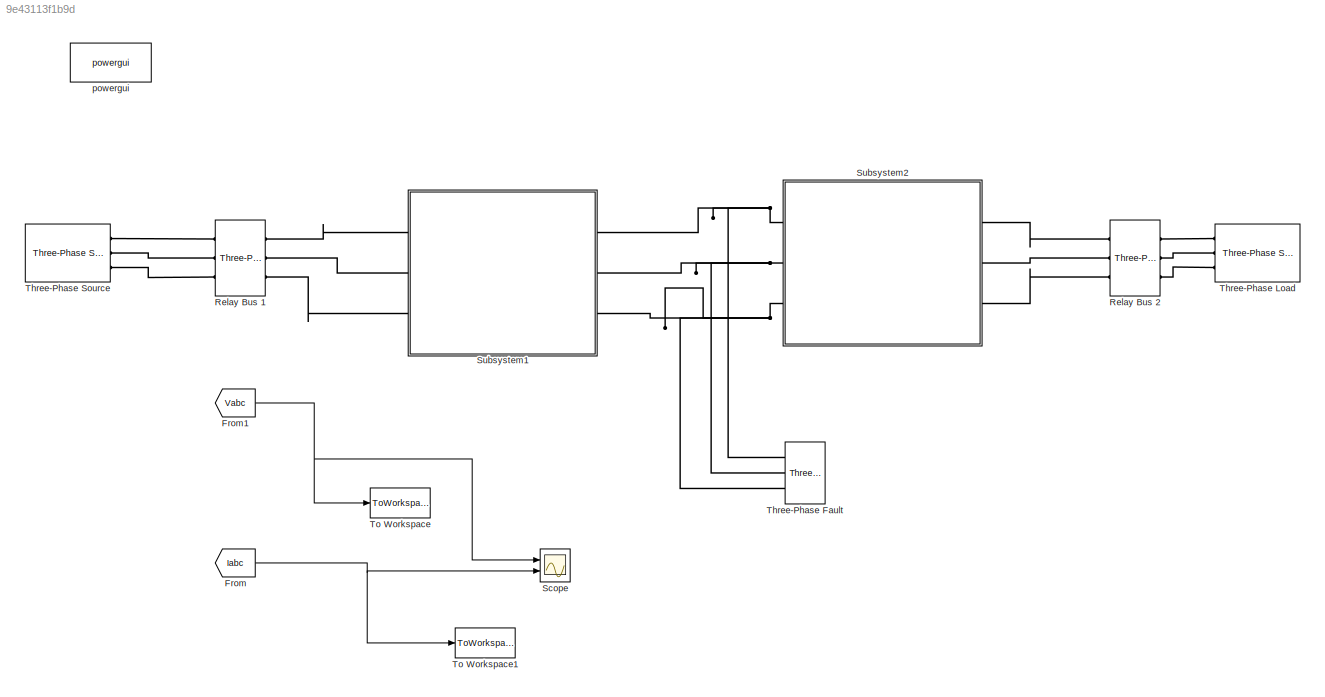
MODEL slx_9e43113f1b9d
KIND model
CONFIG AbsTol = auto
CONFIG EnableMultiTasking = off
CONFIG FixedStep = auto
CONFIG MaxStep = auto
CONFIG MinStep = auto
CONFIG RelTol = 1e-3
CONFIG SampleTimeConstraint = Unconstrained
CONFIG Solver = VariableStepAuto
CONFIG SolverName = VariableStepAuto
CONFIG StartTime = 0.0
CONFIG StopTime = 0.5
BLOCK [From] From
  GotoTag = Iabc
  TagVisibility = global
BLOCK [From] From1
  GotoTag = Vabc
  TagVisibility = global
BLOCK [Reference] Relay Bus 1   REF=powerlib/Measurements/Three-Phase
V-I Measurement
  Ports = [0, 0, 0, 0, 0, 3, 3]
  SourceBlock = powerlib/Measurements/Three-Phase\nV-I Measurement
  SourceProductBaseCode = PS
  SourceProductName = Simscape Electrical
  SourceType = Three-Phase VI Measurement
BLOCK [Reference] Relay Bus 2   REF=powerlib/Measurements/Three-Phase
V-I Measurement
  Ports = [0, 0, 0, 0, 0, 3, 3]
  SourceBlock = powerlib/Measurements/Three-Phase\nV-I Measurement
  SourceProductBaseCode = PS
  SourceProductName = Simscape Electrical
  SourceType = Three-Phase VI Measurement
BLOCK [Scope] Scope 
  Floating = off
  NumInputPorts = 2
  Ports = [2]
  ScopeSpecificationString = Simulink.scopes.TimeScopeBlockCfg('CurrentConfiguration', extmgr.ConfigurationSet(extmgr.Configuration('Core','General UI',true),extmgr.Configuration('Core','Source UI',true),extmgr.Configuration('Sources','WiredSimulink',true),extmgr.Configuration('Visuals','Time Domain',true,'SerializedDisplays',{struct('MinYLimReal','-0.1236','MaxYLimReal','0.12482','YLabelReal','','MinYLimMag','0.00000','MaxYL...<+2104ch>
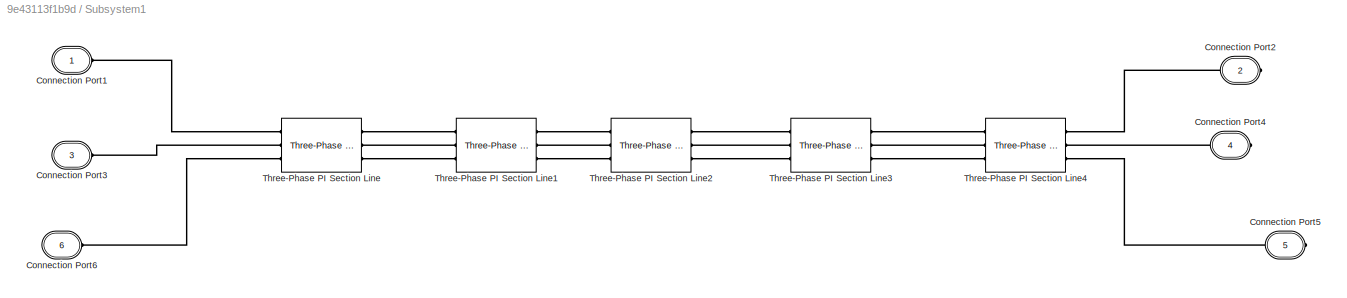
BLOCK [SubSystem] Subsystem1 
  Ports = [0, 0, 0, 0, 0, 3, 3]
  RequestExecContextInheritance = off
BLOCK [PMIOPort] Subsystem1 /Connection Port1 
  Side = Left
  Tag = PMCPort
BLOCK [PMIOPort] Subsystem1 /Connection Port2 
  Port = 2
  Side = Right
  Tag = PMCPort
BLOCK [PMIOPort] Subsystem1 /Connection Port3 
  Port = 3
  Side = Left
  Tag = PMCPort
BLOCK [PMIOPort] Subsystem1 /Connection Port4 
  Port = 4
  Side = Right
  Tag = PMCPort
BLOCK [PMIOPort] Subsystem1 /Connection Port5 
  Port = 5
  Side = Right
  Tag = PMCPort
BLOCK [PMIOPort] Subsystem1 /Connection Port6 
  Port = 6
  Side = Left
  Tag = PMCPort
BLOCK [Reference] Subsystem1 /Three-Phase PI Section Line  REF=powerlib/Elements/Three-Phase
PI Section Line
  AttributesFormatString = \n
  Ports = [0, 0, 0, 0, 0, 3, 3]
  SourceBlock = powerlib/Elements/Three-Phase\nPI Section Line
  SourceProductBaseCode = PS
  SourceProductName = Simscape Electrical
  SourceType = Three-Phase PI Section Line
BLOCK [Reference] Subsystem1 /Three-Phase PI Section Line1  REF=powerlib/Elements/Three-Phase
PI Section Line
  AttributesFormatString = \n
  Ports = [0, 0, 0, 0, 0, 3, 3]
  SourceBlock = powerlib/Elements/Three-Phase\nPI Section Line
  SourceProductBaseCode = PS
  SourceProductName = Simscape Electrical
  SourceType = Three-Phase PI Section Line
BLOCK [Reference] Subsystem1 /Three-Phase PI Section Line2  REF=powerlib/Elements/Three-Phase
PI Section Line
  AttributesFormatString = \n
  Ports = [0, 0, 0, 0, 0, 3, 3]
  SourceBlock = powerlib/Elements/Three-Phase\nPI Section Line
  SourceProductBaseCode = PS
  SourceProductName = Simscape Electrical
  SourceType = Three-Phase PI Section Line
BLOCK [Reference] Subsystem1 /Three-Phase PI Section Line3  REF=powerlib/Elements/Three-Phase
PI Section Line
  AttributesFormatString = \n
  Ports = [0, 0, 0, 0, 0, 3, 3]
  SourceBlock = powerlib/Elements/Three-Phase\nPI Section Line
  SourceProductBaseCode = PS
  SourceProductName = Simscape Electrical
  SourceType = Three-Phase PI Section Line
BLOCK [Reference] Subsystem1 /Three-Phase PI Section Line4  REF=powerlib/Elements/Three-Phase
PI Section Line
  AttributesFormatString = \n
  Ports = [0, 0, 0, 0, 0, 3, 3]
  SourceBlock = powerlib/Elements/Three-Phase\nPI Section Line
  SourceProductBaseCode = PS
  SourceProductName = Simscape Electrical
  SourceType = Three-Phase PI Section Line
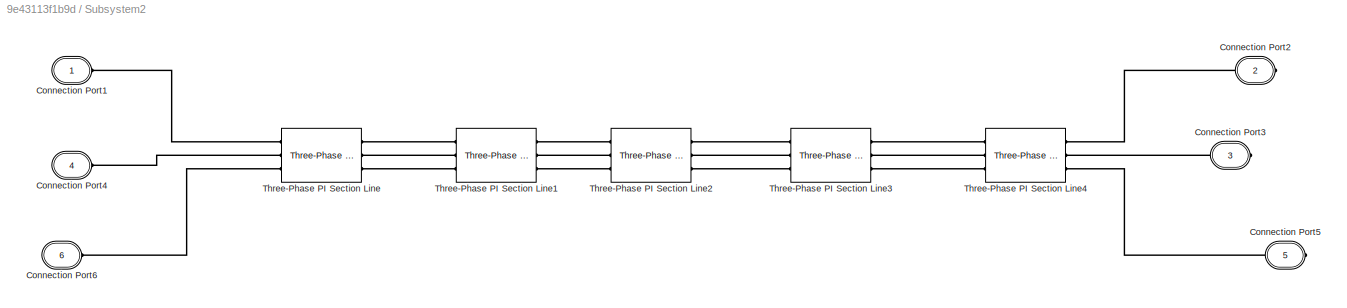
BLOCK [SubSystem] Subsystem2 
  Ports = [0, 0, 0, 0, 0, 3, 3]
  RequestExecContextInheritance = off
BLOCK [PMIOPort] Subsystem2 /Connection Port1 
  Side = Left
  Tag = PMCPort
BLOCK [PMIOPort] Subsystem2 /Connection Port2 
  Port = 2
  Side = Right
  Tag = PMCPort
BLOCK [PMIOPort] Subsystem2 /Connection Port3 
  Port = 3
  Side = Right
  Tag = PMCPort
BLOCK [PMIOPort] Subsystem2 /Connection Port4 
  Port = 4
  Side = Left
  Tag = PMCPort
BLOCK [PMIOPort] Subsystem2 /Connection Port5 
  Port = 5
  Side = Right
  Tag = PMCPort
BLOCK [PMIOPort] Subsystem2 /Connection Port6 
  Port = 6
  Side = Left
  Tag = PMCPort
BLOCK [Reference] Subsystem2 /Three-Phase PI Section Line  REF=powerlib/Elements/Three-Phase
PI Section Line
  AttributesFormatString = \n
  Ports = [0, 0, 0, 0, 0, 3, 3]
  SourceBlock = powerlib/Elements/Three-Phase\nPI Section Line
  SourceProductBaseCode = PS
  SourceProductName = Simscape Electrical
  SourceType = Three-Phase PI Section Line
BLOCK [Reference] Subsystem2 /Three-Phase PI Section Line1  REF=powerlib/Elements/Three-Phase
PI Section Line
  AttributesFormatString = \n
  Ports = [0, 0, 0, 0, 0, 3, 3]
  SourceBlock = powerlib/Elements/Three-Phase\nPI Section Line
  SourceProductBaseCode = PS
  SourceProductName = Simscape Electrical
  SourceType = Three-Phase PI Section Line
BLOCK [Reference] Subsystem2 /Three-Phase PI Section Line2  REF=powerlib/Elements/Three-Phase
PI Section Line
  AttributesFormatString = \n
  Ports = [0, 0, 0, 0, 0, 3, 3]
  SourceBlock = powerlib/Elements/Three-Phase\nPI Section Line
  SourceProductBaseCode = PS
  SourceProductName = Simscape Electrical
  SourceType = Three-Phase PI Section Line
BLOCK [Reference] Subsystem2 /Three-Phase PI Section Line3  REF=powerlib/Elements/Three-Phase
PI Section Line
  AttributesFormatString = \n
  Ports = [0, 0, 0, 0, 0, 3, 3]
  SourceBlock = powerlib/Elements/Three-Phase\nPI Section Line
  SourceProductBaseCode = PS
  SourceProductName = Simscape Electrical
  SourceType = Three-Phase PI Section Line
BLOCK [Reference] Subsystem2 /Three-Phase PI Section Line4  REF=powerlib/Elements/Three-Phase
PI Section Line
  AttributesFormatString = \n
  Ports = [0, 0, 0, 0, 0, 3, 3]
  SourceBlock = powerlib/Elements/Three-Phase\nPI Section Line
  SourceProductBaseCode = PS
  SourceProductName = Simscape Electrical
  SourceType = Three-Phase PI Section Line
BLOCK [Reference] Three-Phase Fault   REF=powerlib/Elements/Three-Phase Fault
  Ports = [0, 0, 0, 0, 0, 3]
  SourceBlock = powerlib/Elements/Three-Phase Fault
  SourceProductBaseCode = PS
  SourceProductName = Simscape Electrical
  SourceType = Three-Phase Fault
BLOCK [Reference] Three-Phase Load   REF=powerlib/Electrical
Sources/Three-Phase Source
  Ports = [0, 0, 0, 0, 0, 0, 3]
  SourceBlock = powerlib/Electrical\nSources/Three-Phase Source
  SourceProductBaseCode = PS
  SourceProductName = Simscape Electrical
  SourceType = Three-Phase Source
BLOCK [Reference] Three-Phase Source   REF=powerlib/Electrical
Sources/Three-Phase Source
  Ports = [0, 0, 0, 0, 0, 0, 3]
  SourceBlock = powerlib/Electrical\nSources/Three-Phase Source
  SourceProductBaseCode = PS
  SourceProductName = Simscape Electrical
  SourceType = Three-Phase Source
BLOCK [ToWorkspace] To Workspace 
  MaxDataPoints = inf
  Ports = [1]
  SaveFormat = Timeseries
  VariableName = Vabc
BLOCK [ToWorkspace] To Workspace1 
  MaxDataPoints = inf
  Ports = [1]
  SaveFormat = Timeseries
  VariableName = Iabc
BLOCK [Reference] powergui  REF=powerlib/powergui
  Ports = []
  Priority = 1
  SourceBlock = powerlib/powergui
  SourceProductBaseCode = PS
  SourceProductName = Simscape Electrical
  SourceType = PSB option menu block
NET From1:1 -> Scope :1, To Workspace :1
NET From:1 -> Scope :2, To Workspace1 :1
PLINE Relay Bus 1 :LConn1 -- Three-Phase Source :RConn1
PLINE Relay Bus 1 :LConn2 -- Three-Phase Source :RConn2
PLINE Relay Bus 1 :LConn3 -- Three-Phase Source :RConn3
PLINE Relay Bus 1 :RConn1 -- Subsystem1 :LConn1
PLINE Relay Bus 1 :RConn2 -- Subsystem1 :LConn2
PLINE Relay Bus 1 :RConn3 -- Subsystem1 :LConn3
PLINE Relay Bus 2 :LConn1 -- Subsystem2 :LConn1
PLINE Relay Bus 2 :LConn2 -- Subsystem2 :LConn2
PLINE Relay Bus 2 :LConn3 -- Subsystem2 :LConn3
PLINE Relay Bus 2 :RConn1 -- Three-Phase Load :RConn1
PLINE Relay Bus 2 :RConn2 -- Three-Phase Load :RConn2
PLINE Relay Bus 2 :RConn3 -- Three-Phase Load :RConn3
PLINE Subsystem1 /Connection Port1 :RConn1 -- Subsystem1 /Three-Phase PI Section Line:LConn1
PLINE Subsystem1 /Connection Port2 :RConn1 -- Subsystem1 /Three-Phase PI Section Line4:RConn1
PLINE Subsystem1 /Connection Port3 :RConn1 -- Subsystem1 /Three-Phase PI Section Line:LConn2
PLINE Subsystem1 /Connection Port4 :RConn1 -- Subsystem1 /Three-Phase PI Section Line4:RConn2
PLINE Subsystem1 /Connection Port5 :RConn1 -- Subsystem1 /Three-Phase PI Section Line4:RConn3
PLINE Subsystem1 /Connection Port6 :RConn1 -- Subsystem1 /Three-Phase PI Section Line:LConn3
PLINE Subsystem1 /Three-Phase PI Section Line1:LConn1 -- Subsystem1 /Three-Phase PI Section Line:RConn1
PLINE Subsystem1 /Three-Phase PI Section Line1:LConn2 -- Subsystem1 /Three-Phase PI Section Line:RConn2
PLINE Subsystem1 /Three-Phase PI Section Line1:LConn3 -- Subsystem1 /Three-Phase PI Section Line:RConn3
PLINE Subsystem1 /Three-Phase PI Section Line1:RConn1 -- Subsystem1 /Three-Phase PI Section Line2:LConn1
PLINE Subsystem1 /Three-Phase PI Section Line1:RConn2 -- Subsystem1 /Three-Phase PI Section Line2:LConn2
PLINE Subsystem1 /Three-Phase PI Section Line1:RConn3 -- Subsystem1 /Three-Phase PI Section Line2:LConn3
PLINE Subsystem1 /Three-Phase PI Section Line2:RConn1 -- Subsystem1 /Three-Phase PI Section Line3:LConn1
PLINE Subsystem1 /Three-Phase PI Section Line2:RConn2 -- Subsystem1 /Three-Phase PI Section Line3:LConn2
PLINE Subsystem1 /Three-Phase PI Section Line2:RConn3 -- Subsystem1 /Three-Phase PI Section Line3:LConn3
PLINE Subsystem1 /Three-Phase PI Section Line3:RConn1 -- Subsystem1 /Three-Phase PI Section Line4:LConn1
PLINE Subsystem1 /Three-Phase PI Section Line3:RConn2 -- Subsystem1 /Three-Phase PI Section Line4:LConn2
PLINE Subsystem1 /Three-Phase PI Section Line3:RConn3 -- Subsystem1 /Three-Phase PI Section Line4:LConn3
PNET net1: Subsystem1 :RConn1 -- Subsystem2 :RConn1 -- Three-Phase Fault :LConn1
PNET net2: Subsystem1 :RConn2 -- Subsystem2 :RConn2 -- Three-Phase Fault :LConn2
PNET net3: Subsystem1 :RConn3 -- Subsystem2 :RConn3 -- Three-Phase Fault :LConn3
PLINE Subsystem2 /Connection Port1 :RConn1 -- Subsystem2 /Three-Phase PI Section Line:LConn1
PLINE Subsystem2 /Connection Port2 :RConn1 -- Subsystem2 /Three-Phase PI Section Line4:RConn1
PLINE Subsystem2 /Connection Port3 :RConn1 -- Subsystem2 /Three-Phase PI Section Line4:RConn2
PLINE Subsystem2 /Connection Port4 :RConn1 -- Subsystem2 /Three-Phase PI Section Line:LConn2
PLINE Subsystem2 /Connection Port5 :RConn1 -- Subsystem2 /Three-Phase PI Section Line4:RConn3
PLINE Subsystem2 /Connection Port6 :RConn1 -- Subsystem2 /Three-Phase PI Section Line:LConn3
PLINE Subsystem2 /Three-Phase PI Section Line1:LConn1 -- Subsystem2 /Three-Phase PI Section Line:RConn1
PLINE Subsystem2 /Three-Phase PI Section Line1:LConn2 -- Subsystem2 /Three-Phase PI Section Line:RConn2
PLINE Subsystem2 /Three-Phase PI Section Line1:LConn3 -- Subsystem2 /Three-Phase PI Section Line:RConn3
PLINE Subsystem2 /Three-Phase PI Section Line1:RConn1 -- Subsystem2 /Three-Phase PI Section Line2:LConn1
PLINE Subsystem2 /Three-Phase PI Section Line1:RConn2 -- Subsystem2 /Three-Phase PI Section Line2:LConn2
PLINE Subsystem2 /Three-Phase PI Section Line1:RConn3 -- Subsystem2 /Three-Phase PI Section Line2:LConn3
PLINE Subsystem2 /Three-Phase PI Section Line2:RConn1 -- Subsystem2 /Three-Phase PI Section Line3:LConn1
PLINE Subsystem2 /Three-Phase PI Section Line2:RConn2 -- Subsystem2 /Three-Phase PI Section Line3:LConn2
PLINE Subsystem2 /Three-Phase PI Section Line2:RConn3 -- Subsystem2 /Three-Phase PI Section Line3:LConn3
PLINE Subsystem2 /Three-Phase PI Section Line3:RConn1 -- Subsystem2 /Three-Phase PI Section Line4:LConn1
PLINE Subsystem2 /Three-Phase PI Section Line3:RConn2 -- Subsystem2 /Three-Phase PI Section Line4:LConn2
PLINE Subsystem2 /Three-Phase PI Section Line3:RConn3 -- Subsystem2 /Three-Phase PI Section Line4:LConn3
note: NET lines group one-source signal fan-out (src -> all destinations, sorted); 1:1 wires keep LINE; PNET lines group multi-terminal physical nets as a canonical sorted terminal list (undirected conserving connections); 2-terminal nets keep the pairwise PLINE form
